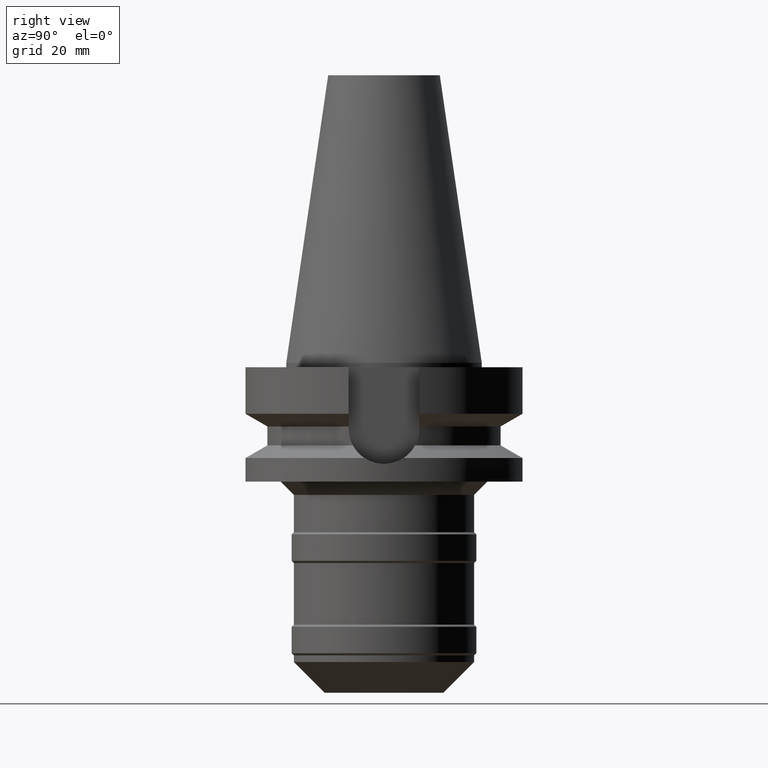
[diagram: clean part render]
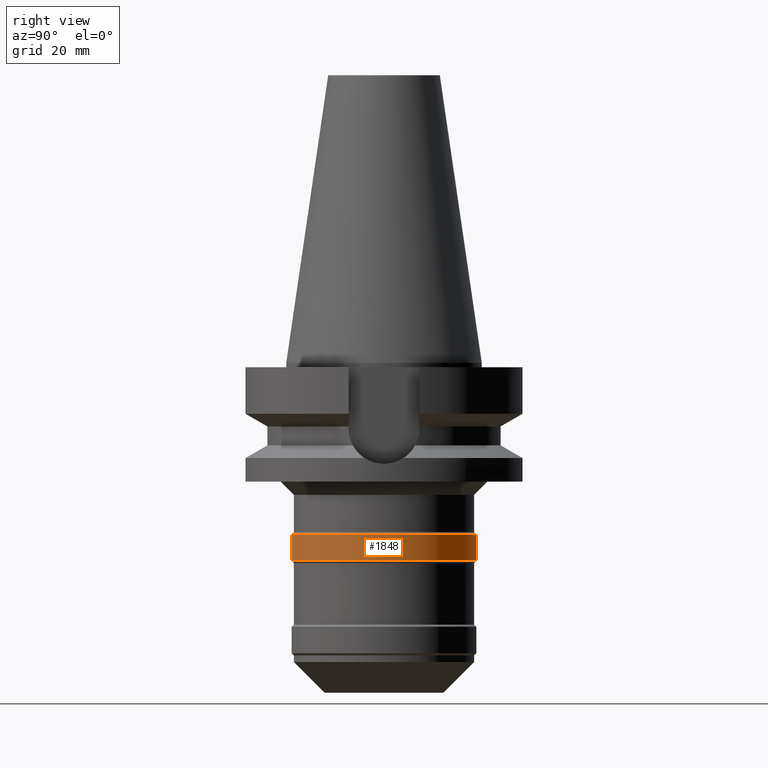
[diagram: same view with one face highlighted and labeled with its STEP entity id]
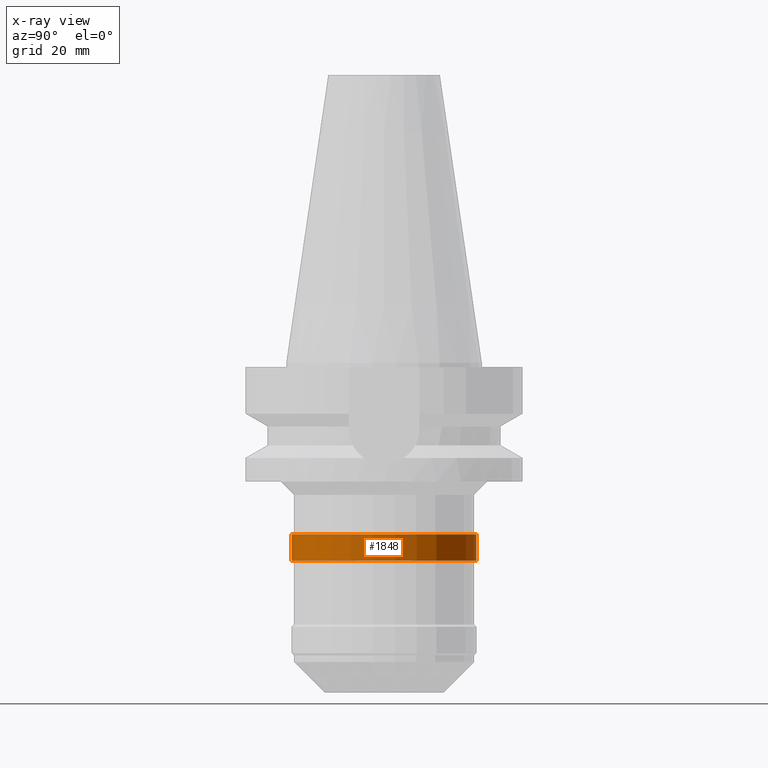
[diagram: x-ray of the same camera — body ghosted, the highlighted face saturated]
A machine part, right view. The second image highlights one B-rep face of the part: STEP entity #1848.
The next image is the same camera in x-ray: the body ghosted, the highlighted face saturated — about 0% of this face is hidden behind the body in this view.
In plain terms, the highlighted cylindrical surface (partial cylindrical patch) has radius 21 mm, axis along (0, 0, -1).
Its self-contained STEP definition (entity closure, byte-faithful):
#734=CARTESIAN_POINT('',(0.E0,0.E0,-3.9E1));
#735=DIRECTION('',(0.E0,0.E0,-1.E0));
#736=DIRECTION('',(0.E0,1.E0,0.E0));
#737=AXIS2_PLACEMENT_3D('',#734,#735,#736);
#750=DIRECTION('',(0.E0,0.E0,-1.E0));
#751=VECTOR('',#750,6.E0);
#752=CARTESIAN_POINT('',(0.E0,2.1E1,-3.9E1));
#753=LINE('',#752,#751);
#757=DIRECTION('',(0.E0,0.E0,-1.E0));
#758=VECTOR('',#757,6.E0);
#759=CARTESIAN_POINT('',(0.E0,-2.1E1,-3.9E1));
#760=LINE('',#759,#758);
#802=CARTESIAN_POINT('',(0.E0,0.E0,-4.5E1));
#803=DIRECTION('',(0.E0,0.E0,1.E0));
#804=DIRECTION('',(0.E0,-1.E0,0.E0));
#805=AXIS2_PLACEMENT_3D('',#802,#803,#804);
#1202=CARTESIAN_POINT('',(0.E0,2.1E1,-4.5E1));
#1203=VERTEX_POINT('',#1202);
#1204=CARTESIAN_POINT('',(0.E0,-2.1E1,-4.5E1));
#1205=VERTEX_POINT('',#1204);
#1206=CARTESIAN_POINT('',(0.E0,2.1E1,-3.9E1));
#1207=VERTEX_POINT('',#1206);
#1208=CARTESIAN_POINT('',(0.E0,-2.1E1,-3.9E1));
#1209=VERTEX_POINT('',#1208);
#1834=CARTESIAN_POINT('',(0.E0,2.111536011090E-14,7.242E1));
#1835=DIRECTION('',(0.E0,0.E0,-1.E0));
#1836=DIRECTION('',(0.E0,-1.E0,0.E0));
#1837=AXIS2_PLACEMENT_3D('',#1834,#1835,#1836);
#1838=CYLINDRICAL_SURFACE('',#1837,2.1E1);
#1840=ORIENTED_EDGE('',*,*,#1839,.T.);
#1842=ORIENTED_EDGE('',*,*,#1841,.F.);
#1844=ORIENTED_EDGE('',*,*,#1843,.F.);
#1845=ORIENTED_EDGE('',*,*,#1827,.F.);
#1846=EDGE_LOOP('',(#1840,#1842,#1844,#1845));
#1847=FACE_OUTER_BOUND('',#1846,.F.);
#738=CIRCLE('',#737,2.1E1);
#806=CIRCLE('',#805,2.1E1);
#1827=EDGE_CURVE('',#1207,#1209,#738,.T.);
#1839=EDGE_CURVE('',#1207,#1203,#753,.T.);
#1841=EDGE_CURVE('',#1205,#1203,#806,.T.);
#1843=EDGE_CURVE('',#1209,#1205,#760,.T.);
#1848=ADVANCED_FACE('',(#1847),#1838,.T.);